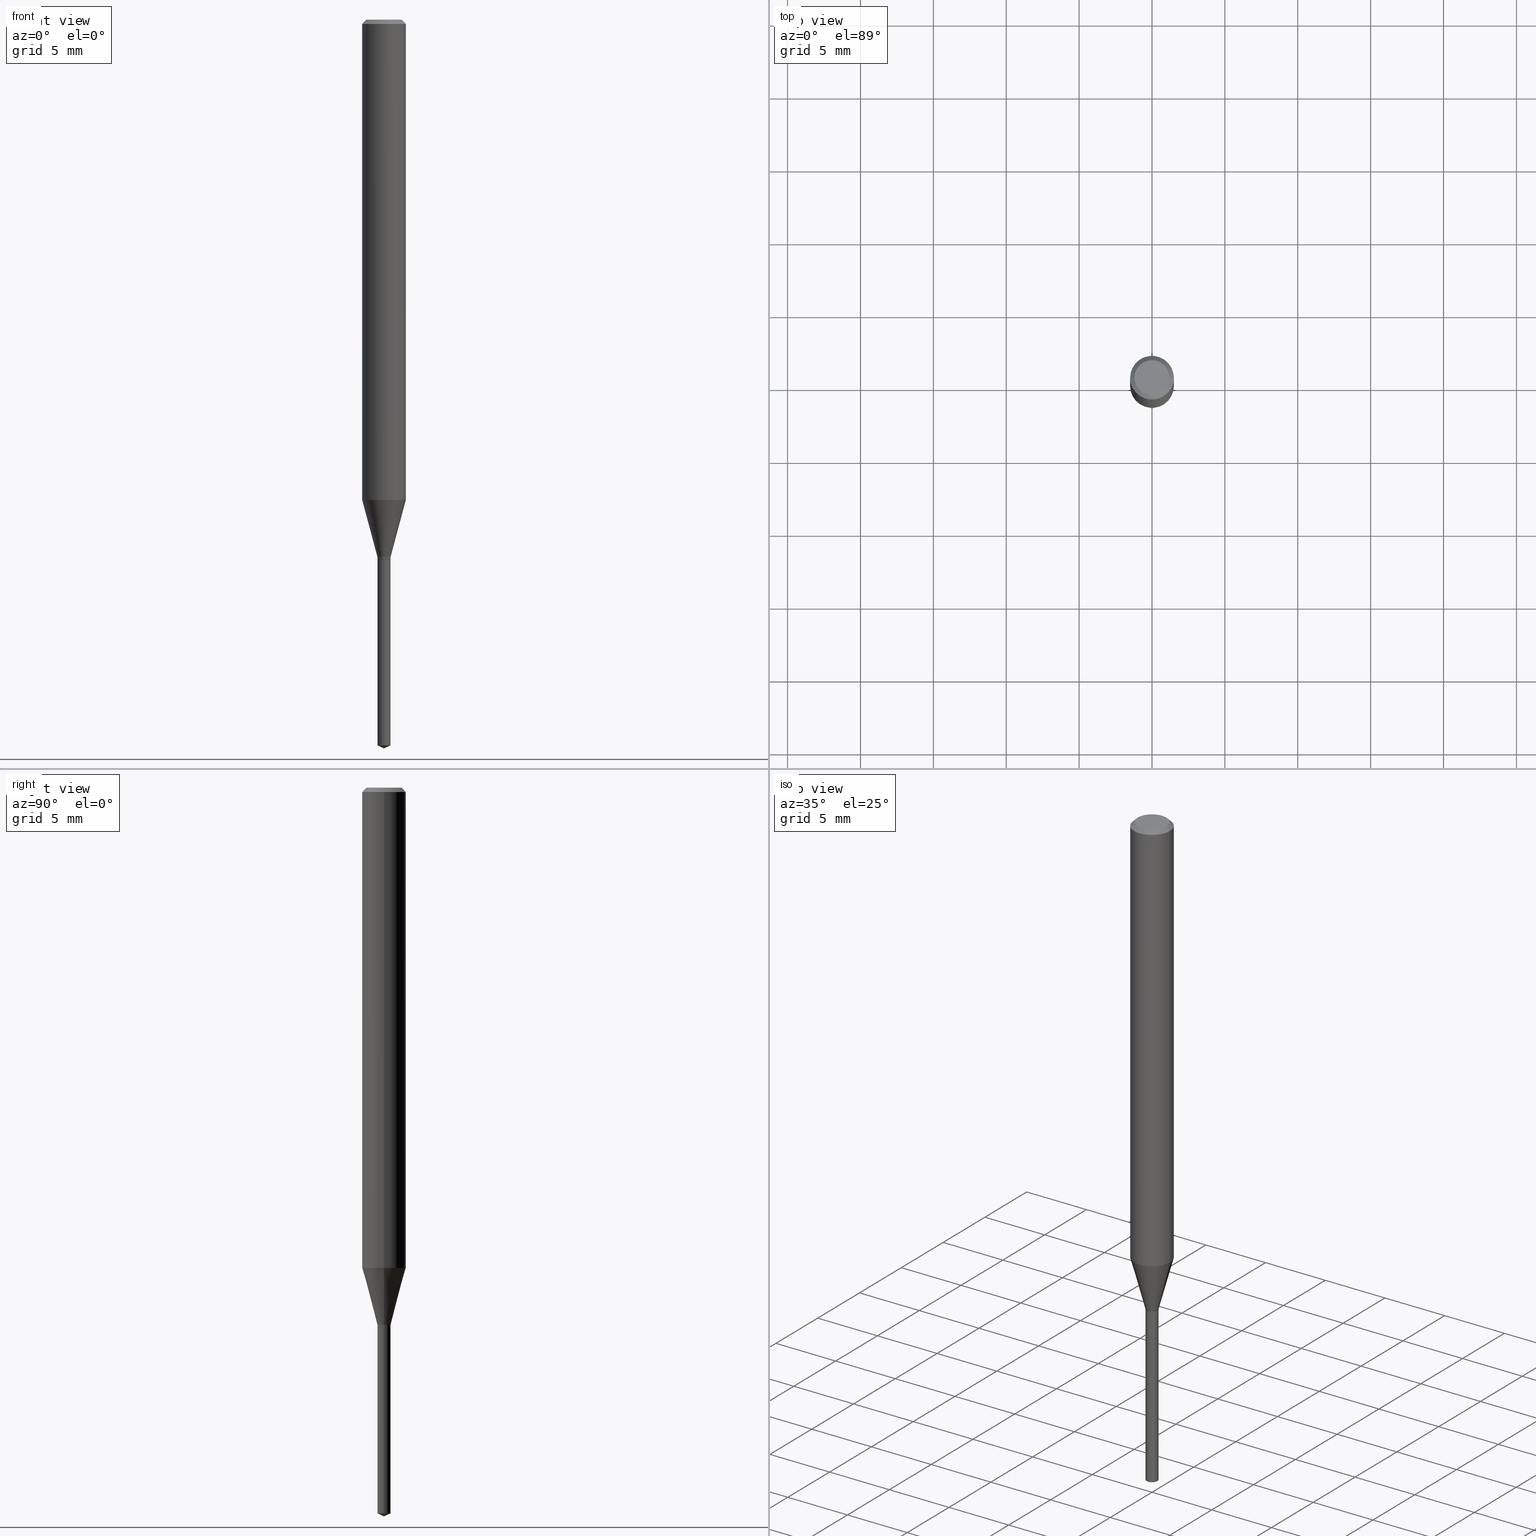
[diagram: canonical four-view strip — front | top / right | iso, engineering-drawing reading convention]
A machine part, canonical four-view strip (front | top / right | iso — engineering-drawing reading convention). The complete STEP part file that produces these views, byte-faithful:
ISO-10303-21;
HEADER;
FILE_DESCRIPTION (( 'STEP AP203' ),
    '1' );
FILE_NAME ('07469.STEP',
    '2024-04-23T21:47:29',
    ( '' ),
    ( '' ),
    'SwSTEP 2.0',
    'SolidWorks 2023',
    '' );
FILE_SCHEMA (( 'CONFIG_CONTROL_DESIGN' ));
ENDSEC;

DATA;
#1 = EDGE_CURVE ( 'NONE', #19, #268, #9, .T. ) ;
#2 = CARTESIAN_POINT ( 'NONE',  ( 0.000000000000000000, 0.000000000000000000, 0.000000000000000000 ) ) ;
#3 = DIRECTION ( 'NONE',  ( -2.445468806185136597E-29, 3.491481338843145583E-15, 1.000000000000000000 ) ) ;
#4 = ORIENTED_EDGE ( 'NONE', *, *, #312, .F. ) ;
#5 = DIRECTION ( 'NONE',  ( 1.000000000000000000, -6.982962677686254089E-15, 0.000000000000000000 ) ) ;
#6 = DIRECTION ( 'NONE',  ( 1.000000000000000000, -6.982962677686266711E-15, 0.000000000000000000 ) ) ;
#7 = ADVANCED_FACE ( 'NONE', ( #263 ), #159, .F. ) ;
#8 = CARTESIAN_POINT ( 'NONE',  ( -0.01720000000000000001, -4.963827515742072474E-15, -1.456699999999999884 ) ) ;
#9 = CIRCLE ( 'NONE', #346, 0.01770000000000004556 ) ;
#10 = AXIS2_PLACEMENT_3D ( 'NONE', #412, #461, #120 ) ;
#11 = CARTESIAN_POINT ( 'NONE',  ( 0.04724000000000000421, -3.852183633974369838E-16, -3.380025165621689721E-19 ) ) ;
#12 = CARTESIAN_POINT ( 'NONE',  ( 0.05905000000000000526, -4.463468013801467941E-16, -0.01181000000000007565 ) ) ;
#13 = DIRECTION ( 'NONE',  ( -2.445468806185136877E-29, 3.491481338843145188E-15, 1.000000000000000000 ) ) ;
#14 = EDGE_CURVE ( 'NONE', #117, #342, #336, .T. ) ;
#15 = MECHANICAL_CONTEXT ( 'NONE', #324, 'mechanical' ) ;
#16 = ORIENTED_EDGE ( 'NONE', *, *, #27, .T. ) ;
#17 = AXIS2_PLACEMENT_3D ( 'NONE', #85, #200, #126 ) ;
#18 = VERTEX_POINT ( 'NONE', #89 ) ;
#19 = VERTEX_POINT ( 'NONE', #204 ) ;
#20 = DIRECTION ( 'NONE',  ( 1.000000000000000000, 0.000000000000000000, 0.000000000000000000 ) ) ;
#21 = ADVANCED_FACE ( 'NONE', ( #135 ), #368, .T. ) ;
#22 = DIRECTION ( 'NONE',  ( -2.445468806185136597E-29, 3.491481338843145583E-15, 1.000000000000000000 ) ) ;
#23 = DIRECTION ( 'NONE',  ( 2.445468806185136597E-29, -3.491481338843145583E-15, -1.000000000000000000 ) ) ;
#24 = DIRECTION ( 'NONE',  ( 1.000000000000000000, -6.982962677686254089E-15, 0.000000000000000000 ) ) ;
#25 = CIRCLE ( 'NONE', #103, 0.04724000000000000421 ) ;
#26 = APPROVAL_ROLE ( '' ) ;
#27 = EDGE_CURVE ( 'NONE', #154, #189, #285, .T. ) ;
#28 = ORIENTED_EDGE ( 'NONE', *, *, #278, .F. ) ;
#29 = CIRCLE ( 'NONE', #377, 0.05905000000000015098 ) ;
#30 = EDGE_LOOP ( 'NONE', ( #315, #332 ) ) ;
#31 = EDGE_CURVE ( 'NONE', #193, #189, #244, .T. ) ;
#32 = DIRECTION ( 'NONE',  ( 1.000000000000000000, -6.982962677686242256E-15, 0.000000000000000000 ) ) ;
#33 = APPROVAL_STATUS ( 'not_yet_approved' ) ;
#34 = ORIENTED_EDGE ( 'NONE', *, *, #290, .T. ) ;
#35 = AXIS2_PLACEMENT_3D ( 'NONE', #196, #272, #402 ) ;
#36 = CARTESIAN_POINT ( 'NONE',  ( 0.000000000000000000, 0.000000000000000000, 0.000000000000000000 ) ) ;
#37 = ORIENTED_EDGE ( 'NONE', *, *, #62, .F. ) ;
#38 = ORIENTED_EDGE ( 'NONE', *, *, #255, .F. ) ;
#39 = FACE_OUTER_BOUND ( 'NONE', #357, .T. ) ;
#40 = ADVANCED_FACE ( 'NONE', ( #65 ), #178, .T. ) ;
#41 = LINE ( 'NONE', #8, #54 ) ;
#42 = LINE ( 'NONE', #12, #168 ) ;
#43 = CARTESIAN_POINT ( 'NONE',  ( 0.01770000000000004556, -5.191134454591988905E-15, -1.451400000000000023 ) ) ;
#44 = VECTOR ( 'NONE', #400, 39.37007874015748143 ) ;
#45 = PRODUCT_DEFINITION_SHAPE ( 'NONE', 'NONE',  #364 ) ;
#46 = PRODUCT_DEFINITION_FORMATION_WITH_SPECIFIED_SOURCE ( 'ANY', '', #129, .NOT_KNOWN. ) ;
#47 = DIRECTION ( 'NONE',  ( 1.000000000000000000, -6.982962677686266711E-15, 0.000000000000000000 ) ) ;
#48 = EDGE_CURVE ( 'NONE', #471, #242, #41, .T. ) ;
#49 = DIRECTION ( 'NONE',  ( 0.000000000000000000, 0.000000000000000000, 1.000000000000000000 ) ) ;
#50 = VERTEX_POINT ( 'NONE', #239 ) ;
#51 = DIRECTION ( 'NONE',  ( -2.445468806185136597E-29, 3.491481338843145583E-15, 1.000000000000000000 ) ) ;
#52 = ORIENTED_EDGE ( 'NONE', *, *, #248, .F. ) ;
#53 = FACE_OUTER_BOUND ( 'NONE', #30, .T. ) ;
#54 = VECTOR ( 'NONE', #434, 39.37007874015748143 ) ;
#55 = AXIS2_PLACEMENT_3D ( 'NONE', #378, #197, #384 ) ;
#56 = DIRECTION ( 'NONE',  ( 1.000000000000000000, -6.982962677686267499E-15, 4.876176775795936353E-29 ) ) ;
#57 = DIRECTION ( 'NONE',  ( 1.000000000000000000, -6.982962677686268288E-15, 0.000000000000000000 ) ) ;
#58 = LENGTH_MEASURE_WITH_UNIT ( LENGTH_MEASURE( 0.02539999999999999897 ), #319 );
#59 = ADVANCED_FACE ( 'NONE', ( #394 ), #161, .T. ) ;
#60 = CARTESIAN_POINT ( 'NONE',  ( 3.561091675566796113E-29, -5.084295125623389731E-15, -1.456200000000000161 ) ) ;
#61 = ADVANCED_BREP_SHAPE_REPRESENTATION ( '07469', ( #320, #484, #91 ), #286 ) ;
#62 = EDGE_CURVE ( 'NONE', #50, #69, #140, .T. ) ;
#63 = LINE ( 'NONE', #147, #436 ) ;
#64 = DATE_AND_TIME ( #188, #299 ) ;
#65 = FACE_OUTER_BOUND ( 'NONE', #106, .T. ) ;
#66 = EDGE_LOOP ( 'NONE', ( #84, #383, #487, #270 ) ) ;
#67 = EDGE_LOOP ( 'NONE', ( #413, #485, #371, #38 ) ) ;
#68 = DATE_TIME_ROLE ( 'classification_date' ) ;
#69 = VERTEX_POINT ( 'NONE', #483 ) ;
#70 = ORIENTED_EDGE ( 'NONE', *, *, #127, .F. ) ;
#71 = DIRECTION ( 'NONE',  ( 1.000000000000000000, -6.982962677686254089E-15, 0.000000000000000000 ) ) ;
#72 = AXIS2_PLACEMENT_3D ( 'NONE', #93, #174, #437 ) ;
#73 = ORIENTED_EDGE ( 'NONE', *, *, #137, .F. ) ;
#74 = APPROVAL_PERSON_ORGANIZATION ( #170, #190, #211 ) ;
#75 = VECTOR ( 'NONE', #345, 39.37007874015748854 ) ;
#76 = CALENDAR_DATE ( 2024, 23, 4 ) ;
#77 = EDGE_LOOP ( 'NONE', ( #349, #194, #382, #73 ) ) ;
#78 = APPLICATION_CONTEXT ( 'configuration controlled 3d designs of mechanical parts and assemblies' ) ;
#79 = DIRECTION ( 'NONE',  ( 1.000000000000000000, -6.982962677686271444E-15, 0.000000000000000000 ) ) ;
#80 = DIRECTION ( 'NONE',  ( 1.000000000000000000, -6.982962677686266711E-15, 4.876176775795935793E-29 ) ) ;
#81 = ORIENTED_EDGE ( 'NONE', *, *, #153, .F. ) ;
#82 = CC_DESIGN_PERSON_AND_ORGANIZATION_ASSIGNMENT ( #393, #479, ( #129 ) ) ;
#83 = VECTOR ( 'NONE', #243, 39.37007874015748854 ) ;
#84 = ORIENTED_EDGE ( 'NONE', *, *, #163, .T. ) ;
#85 = CARTESIAN_POINT ( 'NONE',  ( 3.562314409969888354E-29, -5.086040866292809657E-15, -1.456699999999999884 ) ) ;
#86 = DIRECTION ( 'NONE',  ( -2.445468806185136597E-29, 3.491481338843145583E-15, 1.000000000000000000 ) ) ;
#87 = CARTESIAN_POINT ( 'NONE',  ( 3.549353425297106788E-29, -5.067536015196941719E-15, -1.451400000000000023 ) ) ;
#88 = CARTESIAN_POINT ( 'NONE',  ( -9.146439411113230710E-28, 1.305869142145323662E-13, 37.40157874015748263 ) ) ;
#89 = CARTESIAN_POINT ( 'NONE',  ( 0.01720000000000000001, -5.206147824349013047E-15, -1.456699999999999884 ) ) ;
#90 = VECTOR ( 'NONE', #184, 39.37007874015748143 ) ;
#91 = AXIS2_PLACEMENT_3D ( 'NONE', #251, #49, #20 ) ;
#92 = DIRECTION ( 'NONE',  ( 1.000000000000000000, -6.982962677686266711E-15, 4.876185090822587894E-29 ) ) ;
#93 = CARTESIAN_POINT ( 'NONE',  ( 2.888098660104664642E-31, -4.123439461173780879E-17, -0.01181000000000007565 ) ) ;
#94 = DIRECTION ( 'NONE',  ( -2.445468806185136597E-29, 3.491481338843145583E-15, 1.000000000000000000 ) ) ;
#95 = PERSON_AND_ORGANIZATION ( #289, #151 ) ;
#96 = EDGE_CURVE ( 'NONE', #198, #189, #445, .T. ) ;
#97 = COORDINATED_UNIVERSAL_TIME_OFFSET ( 5, 0, .BEHIND. ) ;
#98 = CIRCLE ( 'NONE', #17, 0.01770000000000000046 ) ;
#99 = CIRCLE ( 'NONE', #279, 0.01720000000000000001 ) ;
#100 = LINE ( 'NONE', #288, #83 ) ;
#101 = CARTESIAN_POINT ( 'NONE',  ( -0.05905000000000008159, 4.195754854663397395E-16, -2.904631170795525745E-30 ) ) ;
#102 = EDGE_CURVE ( 'NONE', #353, #268, #148, .T. ) ;
#103 = AXIS2_PLACEMENT_3D ( 'NONE', #432, #94, #355 ) ;
#104 = APPROVAL ( #33, 'UNSPECIFIED' ) ;
#105 = SECURITY_CLASSIFICATION_LEVEL ( 'unclassified' ) ;
#106 = EDGE_LOOP ( 'NONE', ( #339, #172, #16, #380 ) ) ;
#107 = CARTESIAN_POINT ( 'NONE',  ( -0.05905000000000015098, -4.109154078958125547E-15, -1.297079699107026807 ) ) ;
#108 = EDGE_CURVE ( 'NONE', #242, #353, #124, .T. ) ;
#109 = PERSON_AND_ORGANIZATION ( #289, #151 ) ;
#110 = ORIENTED_EDGE ( 'NONE', *, *, #163, .F. ) ;
#111 = CALENDAR_DATE ( 2024, 23, 4 ) ;
#112 = VERTEX_POINT ( 'NONE', #177 ) ;
#113 = AXIS2_PLACEMENT_3D ( 'NONE', #446, #489, #260 ) ;
#114 = CONICAL_SURFACE ( 'NONE', #223, 0.01720000000000000001, 0.7853981633978666110 ) ;
#115 = DATE_AND_TIME ( #76, #180 ) ;
#116 = CARTESIAN_POINT ( 'NONE',  ( 3.549353425297106788E-29, -5.067536015196941719E-15, -1.451400000000000023 ) ) ;
#117 = VERTEX_POINT ( 'NONE', #201 ) ;
#118 = CYLINDRICAL_SURFACE ( 'NONE', #125, 0.01770000000000000046 ) ;
#119 = EDGE_LOOP ( 'NONE', ( #230, #350, #241 ) ) ;
#120 = DIRECTION ( 'NONE',  ( -1.000000000000000000, 6.982962677686265922E-15, -4.876176775795935793E-29 ) ) ;
#121 = EDGE_CURVE ( 'NONE', #50, #112, #311, .T. ) ;
#122 = DIRECTION ( 'NONE',  ( 1.000000000000000000, -6.982962677686271444E-15, 0.000000000000000000 ) ) ;
#123 = DIRECTION ( 'NONE',  ( 1.000000000000000000, -6.982962677686271444E-15, 0.000000000000000000 ) ) ;
#124 = CIRCLE ( 'NONE', #390, 0.01770000000000004556 ) ;
#125 = AXIS2_PLACEMENT_3D ( 'NONE', #277, #269, #416 ) ;
#126 = DIRECTION ( 'NONE',  ( 1.000000000000000000, -6.982962677686271444E-15, 0.000000000000000000 ) ) ;
#127 = EDGE_CURVE ( 'NONE', #242, #19, #63, .T. ) ;
#128 = DIRECTION ( 'NONE',  ( -2.445468806185136597E-29, 3.491481338843145583E-15, 1.000000000000000000 ) ) ;
#129 = PRODUCT ( '07469', '07469', '', ( #15 ) ) ;
#130 = EDGE_LOOP ( 'NONE', ( #70, #460, #138, #481 ) ) ;
#131 = CARTESIAN_POINT ( 'NONE',  ( 0.000000000000000000, 0.000000000000000000, 0.000000000000000000 ) ) ;
#132 = AXIS2_PLACEMENT_3D ( 'NONE', #361, #23, #149 ) ;
#133 = CC_DESIGN_APPROVAL ( #190, ( #364 ) ) ;
#134 = FACE_OUTER_BOUND ( 'NONE', #77, .T. ) ;
#135 = FACE_OUTER_BOUND ( 'NONE', #66, .T. ) ;
#136 = CALENDAR_DATE ( 2024, 23, 4 ) ;
#137 = EDGE_CURVE ( 'NONE', #112, #342, #325, .T. ) ;
#138 = ORIENTED_EDGE ( 'NONE', *, *, #102, .T. ) ;
#139 = PERSON_AND_ORGANIZATION_ROLE ( 'creator' ) ;
#140 = LINE ( 'NONE', #322, #316 ) ;
#141 = CIRCLE ( 'NONE', #228, 0.01770000000000004556 ) ;
#142 = APPLICATION_PROTOCOL_DEFINITION ( 'international standard', 'config_control_design', 1994, #78 ) ;
#143 = DIRECTION ( 'NONE',  ( 1.000000000000000000, -6.982962677686242256E-15, 0.000000000000000000 ) ) ;
#144 = PERSON_AND_ORGANIZATION ( #289, #151 ) ;
#145 = CC_DESIGN_DATE_AND_TIME_ASSIGNMENT ( #115, #68, ( #391 ) ) ;
#146 = DIRECTION ( 'NONE',  ( -2.445468806185136597E-29, 3.491481338843145583E-15, 1.000000000000000000 ) ) ;
#147 = CARTESIAN_POINT ( 'NONE',  ( -0.01770000000000004556, 1.257660642295380566E-16, -8.706515109751205419E-31 ) ) ;
#148 = LINE ( 'NONE', #367, #44 ) ;
#149 = DIRECTION ( 'NONE',  ( -1.000000000000000000, 6.982962677686265922E-15, 0.000000000000000000 ) ) ;
#150 = AXIS2_PLACEMENT_3D ( 'NONE', #36, #462, #167 ) ;
#151 = ORGANIZATION ( 'UNSPECIFIED', 'UNSPECIFIED', '' ) ;
#152 = ORIENTED_EDGE ( 'NONE', *, *, #255, .T. ) ;
#153 = EDGE_CURVE ( 'NONE', #222, #154, #155, .T. ) ;
#154 = VERTEX_POINT ( 'NONE', #186 ) ;
#155 = LINE ( 'NONE', #447, #210 ) ;
#156 = DIRECTION ( 'NONE',  ( 1.000000000000000000, -6.982962677686271444E-15, 0.000000000000000000 ) ) ;
#157 = CC_DESIGN_DATE_AND_TIME_ASSIGNMENT ( #442, #331, ( #364 ) ) ;
#158 = FACE_OUTER_BOUND ( 'NONE', #130, .T. ) ;
#159 = PLANE ( 'NONE',  #10 ) ;
#160 = FACE_OUTER_BOUND ( 'NONE', #67, .T. ) ;
#161 = CYLINDRICAL_SURFACE ( 'NONE', #405, 0.05905000000000008159 ) ;
#162 = ORIENTED_EDGE ( 'NONE', *, *, #14, .F. ) ;
#163 = EDGE_CURVE ( 'NONE', #268, #19, #141, .T. ) ;
#164 = VECTOR ( 'NONE', #209, 39.37007874015748143 ) ;
#165 = CARTESIAN_POINT ( 'NONE',  ( 0.01770000000000000046, -5.209639305687856843E-15, -1.456699999999999884 ) ) ;
#166 = DESIGN_CONTEXT ( 'detailed design', #78, 'design' ) ;
#167 = DIRECTION ( 'NONE',  ( 1.000000000000000000, -6.982962677686267499E-15, 4.876176775795936353E-29 ) ) ;
#168 = VECTOR ( 'NONE', #472, 39.37007874015748143 ) ;
#169 = ORIENTED_EDGE ( 'NONE', *, *, #423, .T. ) ;
#170 = PERSON_AND_ORGANIZATION ( #289, #151 ) ;
#171 = ADVANCED_FACE ( 'NONE', ( #333 ), #237, .T. ) ;
#172 = ORIENTED_EDGE ( 'NONE', *, *, #248, .T. ) ;
#173 = DIRECTION ( 'NONE',  ( 2.438088387897960049E-29, -3.491481338843145188E-15, -1.000000000000000000 ) ) ;
#174 = DIRECTION ( 'NONE',  ( -2.445468806185136597E-29, 3.491481338843145583E-15, 1.000000000000000000 ) ) ;
#175 = DIRECTION ( 'NONE',  ( -2.438088387897960049E-29, 3.491481338843145188E-15, 1.000000000000000000 ) ) ;
#176 = ADVANCED_FACE ( 'NONE', ( #375 ), #475, .T. ) ;
#177 = CARTESIAN_POINT ( 'NONE',  ( 0.01770000000000000046, -6.967762005494819983E-15, -1.960246354450656536 ) ) ;
#178 = CONICAL_SURFACE ( 'NONE', #132, 0.05905000000000000526, 0.7853981633974453924 ) ;
#179 = PLANE ( 'NONE',  #356 ) ;
#180 = LOCAL_TIME ( 17, 47, 29.00000000000000000, #453 ) ;
#181 = CC_DESIGN_PERSON_AND_ORGANIZATION_ASSIGNMENT ( #109, #224, ( #46 ) ) ;
#182 = DIRECTION ( 'NONE',  ( -2.445468806185136877E-29, 3.491481338843145188E-15, 1.000000000000000000 ) ) ;
#183 = CARTESIAN_POINT ( 'NONE',  ( -0.05905000000000000526, 3.711095515056362547E-16, -0.01181000000000007565 ) ) ;
#184 = DIRECTION ( 'NONE',  ( -0.7071067811865454633, 2.468850131082235367E-15, -0.7071067811865495711 ) ) ;
#185 = PERSON_AND_ORGANIZATION ( #289, #151 ) ;
#186 = CARTESIAN_POINT ( 'NONE',  ( 0.05905000000000000526, -4.535783407291119586E-16, -0.01181000000000007565 ) ) ;
#187 = AXIS2_PLACEMENT_3D ( 'NONE', #306, #337, #156 ) ;
#188 = CALENDAR_DATE ( 2024, 23, 4 ) ;
#189 = VERTEX_POINT ( 'NONE', #482 ) ;
#190 = APPROVAL ( #208, 'UNSPECIFIED' ) ;
#191 = DIRECTION ( 'NONE',  ( -2.445468806185136597E-29, 3.491481338843145583E-15, 1.000000000000000000 ) ) ;
#192 = CLOSED_SHELL ( 'NONE', ( #395, #40, #59, #21, #376, #261, #171, #305, #176, #449, #439, #218 ) ) ;
#193 = VERTEX_POINT ( 'NONE', #107 ) ;
#194 = ORIENTED_EDGE ( 'NONE', *, *, #278, .T. ) ;
#195 = CIRCLE ( 'NONE', #398, 0.01770000000000000046 ) ;
#196 = CARTESIAN_POINT ( 'NONE',  ( 2.888098660104664642E-31, -4.123439461173780879E-17, -0.01181000000000007565 ) ) ;
#197 = DIRECTION ( 'NONE',  ( -2.445468806185136597E-29, 3.491481338843145583E-15, 1.000000000000000000 ) ) ;
#198 = VERTEX_POINT ( 'NONE', #374 ) ;
#199 = FACE_OUTER_BOUND ( 'NONE', #205, .T. ) ;
#200 = DIRECTION ( 'NONE',  ( -2.445468806185136597E-29, 3.491481338843145583E-15, 1.000000000000000000 ) ) ;
#201 = CARTESIAN_POINT ( 'NONE',  ( -0.01770000000000000046, -5.839336151966753145E-15, -1.456699999999999884 ) ) ;
#202 = LOCAL_TIME ( 17, 47, 29.00000000000000000, #97 ) ;
#203 = CARTESIAN_POINT ( 'NONE',  ( 0.01770000000000004556, -5.207893565018436917E-15, -1.456200000000000161 ) ) ;
#204 = CARTESIAN_POINT ( 'NONE',  ( -0.01770000000000004556, -4.950149506180627644E-15, -1.451400000000000023 ) ) ;
#205 = EDGE_LOOP ( 'NONE', ( #373, #469, #417, #452 ) ) ;
#206 = ORIENTED_EDGE ( 'NONE', *, *, #455, .F. ) ;
#207 = APPLICATION_PROTOCOL_DEFINITION ( 'international standard', 'config_control_design', 1994, #324 ) ;
#208 = APPROVAL_STATUS ( 'not_yet_approved' ) ;
#209 = DIRECTION ( 'NONE',  ( 0.9063077870366508249, -4.853149677051393778E-15, 0.4226182617406974984 ) ) ;
#210 = VECTOR ( 'NONE', #456, 39.37007874015748143 ) ;
#211 = APPROVAL_ROLE ( '' ) ;
#212 = DIRECTION ( 'NONE',  ( -2.445468806185136597E-29, 3.491481338843145583E-15, 1.000000000000000000 ) ) ;
#213 = DIRECTION ( 'NONE',  ( -2.445468806185136597E-29, 3.491481338843145583E-15, 1.000000000000000000 ) ) ;
#214 = DIRECTION ( 'NONE',  ( 1.000000000000000000, -6.982962677686242256E-15, 0.000000000000000000 ) ) ;
#215 = CIRCLE ( 'NONE', #292, 0.04724000000000000421 ) ;
#216 = PERSON_AND_ORGANIZATION_ROLE ( 'classification_officer' ) ;
#217 = APPROVAL_DATE_TIME ( #64, #104 ) ;
#218 = ADVANCED_FACE ( 'NONE', ( #229 ), #428, .T. ) ;
#219 = DIRECTION ( 'NONE',  ( -0.9063077870366508249, 7.915267918739014631E-15, 0.4226182617406974984 ) ) ;
#220 = AXIS2_PLACEMENT_3D ( 'NONE', #304, #463, #123 ) ;
#221 = DIRECTION ( 'NONE',  ( -2.445468806185136597E-29, 3.491481338843145583E-15, 1.000000000000000000 ) ) ;
#222 = VERTEX_POINT ( 'NONE', #282 ) ;
#223 = AXIS2_PLACEMENT_3D ( 'NONE', #344, #3, #427 ) ;
#224 = PERSON_AND_ORGANIZATION_ROLE ( 'design_supplier' ) ;
#225 = EDGE_CURVE ( 'NONE', #309, #198, #25, .T. ) ;
#226 = ORIENTED_EDGE ( 'NONE', *, *, #409, .T. ) ;
#227 = CARTESIAN_POINT ( 'NONE',  ( 0.01770000000000004556, -5.191134454591988905E-15, -1.451400000000000023 ) ) ;
#228 = AXIS2_PLACEMENT_3D ( 'NONE', #328, #221, #370 ) ;
#229 = FACE_OUTER_BOUND ( 'NONE', #266, .T. ) ;
#230 = ORIENTED_EDGE ( 'NONE', *, *, #121, .F. ) ;
#231 = LINE ( 'NONE', #300, #253 ) ;
#232 = DIRECTION ( 'NONE',  ( -2.445468806185136597E-29, 3.491481338843145583E-15, 1.000000000000000000 ) ) ;
#233 = CARTESIAN_POINT ( 'NONE',  ( 4.793721312247213410E-29, -6.844163566099774374E-15, -1.960246354450656536 ) ) ;
#234 = EDGE_CURVE ( 'NONE', #222, #193, #29, .T. ) ;
#235 = DIRECTION ( 'NONE',  ( 0.7071067811868433362, -2.468850131085355312E-15, 0.7071067811862516983 ) ) ;
#236 = CARTESIAN_POINT ( 'NONE',  ( 0.000000000000000000, 0.000000000000000000, 0.000000000000000000 ) ) ;
#237 = CONICAL_SURFACE ( 'NONE', #252, 0.01770000000000004556, 0.2617993877991498519 ) ;
#238 = APPROVAL_PERSON_ORGANIZATION ( #372, #104, #257 ) ;
#239 = CARTESIAN_POINT ( 'NONE',  ( 4.813905344975441835E-29, -6.872981015512731707E-15, -1.968500000000000139 ) ) ;
#240 = CYLINDRICAL_SURFACE ( 'NONE', #307, 0.01770000000000004556 ) ;
#241 = ORIENTED_EDGE ( 'NONE', *, *, #318, .F. ) ;
#242 = VERTEX_POINT ( 'NONE', #386 ) ;
#243 = DIRECTION ( 'NONE',  ( -0.2588190451025211281, 5.211531920934547886E-15, 0.9659258262890679791 ) ) ;
#244 = LINE ( 'NONE', #101, #246 ) ;
#245 = CARTESIAN_POINT ( 'NONE',  ( -0.01720000000000000001, -4.961178288567961273E-15, -1.456699999999999884 ) ) ;
#246 = VECTOR ( 'NONE', #406, 39.37007874015748143 ) ;
#247 = AXIS2_PLACEMENT_3D ( 'NONE', #420, #86, #6 ) ;
#248 = EDGE_CURVE ( 'NONE', #309, #154, #42, .T. ) ;
#249 = CARTESIAN_POINT ( 'NONE',  ( 4.813905344975441835E-29, -6.872981015512731707E-15, -1.968500000000000139 ) ) ;
#250 = DIRECTION ( 'NONE',  ( -1.000000000000000000, 6.982962677686265922E-15, -4.876176775795935793E-29 ) ) ;
#251 = CARTESIAN_POINT ( 'NONE',  ( 0.000000000000000000, 0.000000000000000000, 0.000000000000000000 ) ) ;
#252 = AXIS2_PLACEMENT_3D ( 'NONE', #116, #212, #71 ) ;
#253 = VECTOR ( 'NONE', #235, 39.37007874015748143 ) ;
#254 = EDGE_LOOP ( 'NONE', ( #34, #467 ) ) ;
#255 = EDGE_CURVE ( 'NONE', #189, #154, #298, .T. ) ;
#256 = DIRECTION ( 'NONE',  ( -2.445468806185136877E-29, 3.491481338843145188E-15, 1.000000000000000000 ) ) ;
#257 = APPROVAL_ROLE ( '' ) ;
#258 = DIRECTION ( 'NONE',  ( -2.445468806185136597E-29, 3.491481338843145583E-15, 1.000000000000000000 ) ) ;
#259 = PERSON_AND_ORGANIZATION ( #289, #151 ) ;
#260 = DIRECTION ( 'NONE',  ( 1.000000000000000000, -6.982962677686254089E-15, 0.000000000000000000 ) ) ;
#261 = ADVANCED_FACE ( 'NONE', ( #158 ), #240, .T. ) ;
#262 = AXIS2_PLACEMENT_3D ( 'NONE', #275, #438, #143 ) ;
#263 = FACE_OUTER_BOUND ( 'NONE', #254, .T. ) ;
#264 = EDGE_LOOP ( 'NONE', ( #206, #422, #334, #4 ) ) ;
#265 = APPROVAL ( #411, 'UNSPECIFIED' ) ;
#266 = EDGE_LOOP ( 'NONE', ( #335, #169, #466, #490 ) ) ;
#267 = CC_DESIGN_PERSON_AND_ORGANIZATION_ASSIGNMENT ( #259, #293, ( #46 ) ) ;
#268 = VERTEX_POINT ( 'NONE', #227 ) ;
#269 = DIRECTION ( 'NONE',  ( -2.445468806185136597E-29, 3.491481338843145583E-15, 1.000000000000000000 ) ) ;
#270 = ORIENTED_EDGE ( 'NONE', *, *, #414, .F. ) ;
#271 = FACE_OUTER_BOUND ( 'NONE', #399, .T. ) ;
#272 = DIRECTION ( 'NONE',  ( 2.445468806185136597E-29, -3.491481338843145583E-15, -1.000000000000000000 ) ) ;
#273 = CONICAL_SURFACE ( 'NONE', #421, 84.42940631927444883, 1.134464013796316451 ) ;
#274 = LINE ( 'NONE', #43, #75 ) ;
#275 = CARTESIAN_POINT ( 'NONE',  ( 3.562314409969888354E-29, -5.086040866292809657E-15, -1.456699999999999884 ) ) ;
#276 = ORIENTED_EDGE ( 'NONE', *, *, #433, .F. ) ;
#277 = CARTESIAN_POINT ( 'NONE',  ( 3.562314409969888354E-29, -5.086040866292809657E-15, -1.456699999999999884 ) ) ;
#278 = EDGE_CURVE ( 'NONE', #69, #117, #310, .T. ) ;
#279 = AXIS2_PLACEMENT_3D ( 'NONE', #440, #22, #214 ) ;
#280 = ORIENTED_EDGE ( 'NONE', *, *, #121, .T. ) ;
#281 = CYLINDRICAL_SURFACE ( 'NONE', #369, 0.01770000000000000046 ) ;
#282 = CARTESIAN_POINT ( 'NONE',  ( 0.05905000000000015098, -4.941073510541841537E-15, -1.297079699107026807 ) ) ;
#283 = DATE_AND_TIME ( #136, #347 ) ;
#284 = FACE_OUTER_BOUND ( 'NONE', #430, .T. ) ;
#285 = CIRCLE ( 'NONE', #72, 0.05905000000000000526 ) ;
#286 =( GEOMETRIC_REPRESENTATION_CONTEXT ( 3 ) GLOBAL_UNCERTAINTY_ASSIGNED_CONTEXT ( ( #425 ) ) GLOBAL_UNIT_ASSIGNED_CONTEXT ( ( #431, #358, #474 ) ) REPRESENTATION_CONTEXT ( 'NONE', 'WORKASPACE' ) );
#287 = CONICAL_SURFACE ( 'NONE', #247, 84.42940631927444883, 1.134464013796316451 ) ;
#288 = CARTESIAN_POINT ( 'NONE',  ( -0.01770000000000004556, -4.941769950967403638E-15, -1.451400000000000023 ) ) ;
#289 = PERSON ( 'UNSPECIFIED', 'UNSPECIFIED', 'UNSPECIFIED', ('UNSPECIFIED'), ('UNSPECIFIED'), ('UNSPECIFIED') ) ;
#290 = EDGE_CURVE ( 'NONE', #342, #117, #98, .T. ) ;
#291 = CARTESIAN_POINT ( 'NONE',  ( 0.01770000000000000046, -5.209639305687856843E-15, -1.456699999999999884 ) ) ;
#292 = AXIS2_PLACEMENT_3D ( 'NONE', #392, #348, #92 ) ;
#293 = PERSON_AND_ORGANIZATION_ROLE ( 'creator' ) ;
#294 = EDGE_LOOP ( 'NONE', ( #301, #351, #110, #415 ) ) ;
#295 = EDGE_CURVE ( 'NONE', #198, #309, #215, .T. ) ;
#296 = COORDINATED_UNIVERSAL_TIME_OFFSET ( 5, 0, .BEHIND. ) ;
#297 = CALENDAR_DATE ( 2024, 23, 4 ) ;
#298 = CIRCLE ( 'NONE', #363, 0.05905000000000000526 ) ;
#299 = LOCAL_TIME ( 17, 47, 29.00000000000000000, #366 ) ;
#300 = CARTESIAN_POINT ( 'NONE',  ( 0.01720000000000000001, -5.206147824349013047E-15, -1.456699999999999884 ) ) ;
#301 = ORIENTED_EDGE ( 'NONE', *, *, #341, .T. ) ;
#302 = ORIENTED_EDGE ( 'NONE', *, *, #27, .F. ) ;
#303 = CYLINDRICAL_SURFACE ( 'NONE', #150, 0.05905000000000008159 ) ;
#304 = CARTESIAN_POINT ( 'NONE',  ( 3.562314409969888354E-29, -5.086040866292809657E-15, -1.456699999999999884 ) ) ;
#305 = ADVANCED_FACE ( 'NONE', ( #160 ), #303, .T. ) ;
#306 = CARTESIAN_POINT ( 'NONE',  ( 4.793721312247213410E-29, -6.844163566099774374E-15, -1.960246354450656536 ) ) ;
#307 = AXIS2_PLACEMENT_3D ( 'NONE', #2, #424, #80 ) ;
#308 = CIRCLE ( 'NONE', #187, 0.01770000000000000046 ) ;
#309 = VERTEX_POINT ( 'NONE', #11 ) ;
#310 = LINE ( 'NONE', #426, #443 ) ;
#311 = LINE ( 'NONE', #249, #164 ) ;
#312 = EDGE_CURVE ( 'NONE', #193, #222, #354, .T. ) ;
#313 = FACE_OUTER_BOUND ( 'NONE', #119, .T. ) ;
#314 = CC_DESIGN_PERSON_AND_ORGANIZATION_ASSIGNMENT ( #185, #216, ( #391 ) ) ;
#315 = ORIENTED_EDGE ( 'NONE', *, *, #295, .T. ) ;
#316 = VECTOR ( 'NONE', #219, 39.37007874015748143 ) ;
#317 = CARTESIAN_POINT ( 'NONE',  ( 3.562314409969888354E-29, -5.086040866292809657E-15, -1.456699999999999884 ) ) ;
#318 = EDGE_CURVE ( 'NONE', #112, #69, #308, .T. ) ;
#319 =( LENGTH_UNIT ( ) NAMED_UNIT ( * ) SI_UNIT ( $, .METRE. ) );
#320 = MANIFOLD_SOLID_BREP ( 'Body-Move/Copy2[1]', #419 ) ;
#321 = CC_DESIGN_APPROVAL ( #265, ( #46 ) ) ;
#322 = CARTESIAN_POINT ( 'NONE',  ( 4.813905344975441835E-29, -6.872981015512731707E-15, -1.968500000000000139 ) ) ;
#323 = CC_DESIGN_PERSON_AND_ORGANIZATION_ASSIGNMENT ( #95, #139, ( #364 ) ) ;
#324 = APPLICATION_CONTEXT ( 'configuration controlled 3d designs of mechanical parts and assemblies' ) ;
#325 = LINE ( 'NONE', #291, #486 ) ;
#326 = DATE_AND_TIME ( #297, #480 ) ;
#327 = CIRCLE ( 'NONE', #55, 0.01770000000000004556 ) ;
#328 = CARTESIAN_POINT ( 'NONE',  ( 3.549353425297106788E-29, -5.067536015196941719E-15, -1.451400000000000023 ) ) ;
#329 = ORIENTED_EDGE ( 'NONE', *, *, #295, .F. ) ;
#330 = EDGE_CURVE ( 'NONE', #18, #353, #231, .T. ) ;
#331 = DATE_TIME_ROLE ( 'creation_date' ) ;
#332 = ORIENTED_EDGE ( 'NONE', *, *, #225, .T. ) ;
#333 = FACE_OUTER_BOUND ( 'NONE', #264, .T. ) ;
#334 = ORIENTED_EDGE ( 'NONE', *, *, #414, .T. ) ;
#335 = ORIENTED_EDGE ( 'NONE', *, *, #48, .F. ) ;
#336 = CIRCLE ( 'NONE', #220, 0.01770000000000000046 ) ;
#337 = DIRECTION ( 'NONE',  ( -2.445468806185136597E-29, 3.491481338843145583E-15, 1.000000000000000000 ) ) ;
#338 = CIRCLE ( 'NONE', #262, 0.01720000000000000001 ) ;
#339 = ORIENTED_EDGE ( 'NONE', *, *, #225, .F. ) ;
#340 = CYLINDRICAL_SURFACE ( 'NONE', #379, 0.01770000000000004556 ) ;
#341 = EDGE_CURVE ( 'NONE', #353, #242, #327, .T. ) ;
#342 = VERTEX_POINT ( 'NONE', #165 ) ;
#343 = ORIENTED_EDGE ( 'NONE', *, *, #96, .T. ) ;
#344 = CARTESIAN_POINT ( 'NONE',  ( 3.562314409969888354E-29, -5.086040866292809657E-15, -1.456699999999999884 ) ) ;
#345 = DIRECTION ( 'NONE',  ( 0.2588190451025211281, 1.565188264969622954E-15, 0.9659258262890679791 ) ) ;
#346 = AXIS2_PLACEMENT_3D ( 'NONE', #87, #470, #5 ) ;
#347 = LOCAL_TIME ( 17, 47, 29.00000000000000000, #352 ) ;
#348 = DIRECTION ( 'NONE',  ( -2.445468806185136597E-29, 3.491481338843145583E-15, 1.000000000000000000 ) ) ;
#349 = ORIENTED_EDGE ( 'NONE', *, *, #318, .T. ) ;
#350 = ORIENTED_EDGE ( 'NONE', *, *, #62, .T. ) ;
#351 = ORIENTED_EDGE ( 'NONE', *, *, #127, .T. ) ;
#352 = COORDINATED_UNIVERSAL_TIME_OFFSET ( 5, 0, .BEHIND. ) ;
#353 = VERTEX_POINT ( 'NONE', #203 ) ;
#354 = CIRCLE ( 'NONE', #410, 0.05905000000000015098 ) ;
#355 = DIRECTION ( 'NONE',  ( 1.000000000000000000, -6.982962677686266711E-15, 4.876185090822587894E-29 ) ) ;
#356 = AXIS2_PLACEMENT_3D ( 'NONE', #396, #175, #362 ) ;
#357 = EDGE_LOOP ( 'NONE', ( #28, #226, #451, #162 ) ) ;
#358 =( NAMED_UNIT ( * ) PLANE_ANGLE_UNIT ( ) SI_UNIT ( $, .RADIAN. ) );
#359 = ADVANCED_FACE ( 'NONE', ( #313 ), #273, .T. ) ;
#360 = DIRECTION ( 'NONE',  ( 1.000000000000000000, -6.982962677686271444E-15, 0.000000000000000000 ) ) ;
#361 = CARTESIAN_POINT ( 'NONE',  ( 2.888098660104664642E-31, -4.123439461173780879E-17, -0.01181000000000007565 ) ) ;
#362 = DIRECTION ( 'NONE',  ( 1.000000000000000000, -6.982962677686265922E-15, 4.876176775795935793E-29 ) ) ;
#363 = AXIS2_PLACEMENT_3D ( 'NONE', #478, #441, #57 ) ;
#364 = PRODUCT_DEFINITION ( 'UNKNOWN', '', #46, #166 ) ;
#365 = CC_DESIGN_APPROVAL ( #104, ( #391 ) ) ;
#366 = COORDINATED_UNIVERSAL_TIME_OFFSET ( 5, 0, .BEHIND. ) ;
#367 = CARTESIAN_POINT ( 'NONE',  ( 0.01770000000000004556, -1.235984393950472351E-16, 8.630832893158828620E-31 ) ) ;
#368 = CONICAL_SURFACE ( 'NONE', #113, 0.01770000000000004556, 0.2617993877991498519 ) ;
#369 = AXIS2_PLACEMENT_3D ( 'NONE', #317, #51, #360 ) ;
#370 = DIRECTION ( 'NONE',  ( 1.000000000000000000, -6.982962677686254089E-15, 0.000000000000000000 ) ) ;
#371 = ORIENTED_EDGE ( 'NONE', *, *, #153, .T. ) ;
#372 = PERSON_AND_ORGANIZATION ( #289, #151 ) ;
#373 = ORIENTED_EDGE ( 'NONE', *, *, #433, .T. ) ;
#374 = CARTESIAN_POINT ( 'NONE',  ( -0.04724000000000000421, 3.504923541997677355E-16, -3.380025165670481712E-19 ) ) ;
#375 = FACE_OUTER_BOUND ( 'NONE', #488, .T. ) ;
#376 = ADVANCED_FACE ( 'NONE', ( #473 ), #340, .T. ) ;
#377 = AXIS2_PLACEMENT_3D ( 'NONE', #464, #232, #79 ) ;
#378 = CARTESIAN_POINT ( 'NONE',  ( 3.561091675566796113E-29, -5.084295125623389731E-15, -1.456200000000000161 ) ) ;
#379 = AXIS2_PLACEMENT_3D ( 'NONE', #131, #459, #468 ) ;
#380 = ORIENTED_EDGE ( 'NONE', *, *, #96, .F. ) ;
#381 = CARTESIAN_POINT ( 'NONE',  ( 3.562314409969888354E-29, -5.086040866292809657E-15, -1.456699999999999884 ) ) ;
#382 = ORIENTED_EDGE ( 'NONE', *, *, #290, .F. ) ;
#383 = ORIENTED_EDGE ( 'NONE', *, *, #455, .T. ) ;
#384 = DIRECTION ( 'NONE',  ( 1.000000000000000000, -6.982962677686254089E-15, 0.000000000000000000 ) ) ;
#385 = DIMENSIONAL_EXPONENTS ( 1.000000000000000000, 0.000000000000000000, 0.000000000000000000, 0.000000000000000000, 0.000000000000000000, 0.000000000000000000, 0.000000000000000000 ) ;
#386 = CARTESIAN_POINT ( 'NONE',  ( -0.01770000000000004556, -4.950149506180627644E-15, -1.456200000000000161 ) ) ;
#387 = DIRECTION ( 'NONE',  ( -2.445468806185136597E-29, 3.491481338843145583E-15, 1.000000000000000000 ) ) ;
#388 = ADVANCED_FACE ( 'NONE', ( #39 ), #118, .T. ) ;
#389 = CARTESIAN_POINT ( 'NONE',  ( 3.171967943302237330E-29, -4.528729564424465828E-15, -1.297079699107026807 ) ) ;
#390 = AXIS2_PLACEMENT_3D ( 'NONE', #60, #213, #24 ) ;
#391 = SECURITY_CLASSIFICATION ( '', '', #105 ) ;
#392 = CARTESIAN_POINT ( 'NONE',  ( 8.265746106709734507E-48, -1.180129479067563789E-33, -3.380025165646692144E-19 ) ) ;
#393 = PERSON_AND_ORGANIZATION ( #289, #151 ) ;
#394 = FACE_OUTER_BOUND ( 'NONE', #458, .T. ) ;
#395 = ADVANCED_FACE ( 'NONE', ( #199 ), #114, .T. ) ;
#396 = CARTESIAN_POINT ( 'NONE',  ( 3.562314409969888354E-29, -5.086040866292809657E-15, -1.456699999999999884 ) ) ;
#397 = AXIS2_PLACEMENT_3D ( 'NONE', #381, #258, #32 ) ;
#398 = AXIS2_PLACEMENT_3D ( 'NONE', #233, #128, #465 ) ;
#399 = EDGE_LOOP ( 'NONE', ( #37, #280, #408 ) ) ;
#400 = DIRECTION ( 'NONE',  ( -2.445468806185136877E-29, 3.491481338843145188E-15, 1.000000000000000000 ) ) ;
#401 = CARTESIAN_POINT ( 'NONE',  ( 4.132873053354867254E-48, -5.900647395337818946E-34, -1.690012582823346072E-19 ) ) ;
#402 = DIRECTION ( 'NONE',  ( -1.000000000000000000, 6.982962677686265922E-15, 0.000000000000000000 ) ) ;
#403 = ADVANCED_FACE ( 'NONE', ( #271 ), #287, .T. ) ;
#404 = PRODUCT_RELATED_PRODUCT_CATEGORY ( 'detail', '', ( #129 ) ) ;
#405 = AXIS2_PLACEMENT_3D ( 'NONE', #236, #146, #56 ) ;
#406 = DIRECTION ( 'NONE',  ( -2.445468806185136877E-29, 3.491481338843145188E-15, 1.000000000000000000 ) ) ;
#407 = SHAPE_DEFINITION_REPRESENTATION ( #45, #61 ) ;
#408 = ORIENTED_EDGE ( 'NONE', *, *, #409, .F. ) ;
#409 = EDGE_CURVE ( 'NONE', #69, #112, #195, .T. ) ;
#410 = AXIS2_PLACEMENT_3D ( 'NONE', #389, #191, #122 ) ;
#411 = APPROVAL_STATUS ( 'not_yet_approved' ) ;
#412 = CARTESIAN_POINT ( 'NONE',  ( 3.562314409969888354E-29, -5.086040866292809657E-15, -1.456699999999999884 ) ) ;
#413 = ORIENTED_EDGE ( 'NONE', *, *, #31, .F. ) ;
#414 = EDGE_CURVE ( 'NONE', #268, #222, #274, .T. ) ;
#415 = ORIENTED_EDGE ( 'NONE', *, *, #102, .F. ) ;
#416 = DIRECTION ( 'NONE',  ( 1.000000000000000000, -6.982962677686271444E-15, 0.000000000000000000 ) ) ;
#417 = ORIENTED_EDGE ( 'NONE', *, *, #341, .F. ) ;
#418 = ORIENTED_EDGE ( 'NONE', *, *, #423, .F. ) ;
#419 = CLOSED_SHELL ( 'NONE', ( #476, #359, #403, #388, #7 ) ) ;
#420 = CARTESIAN_POINT ( 'NONE',  ( -9.146439411113230710E-28, 1.305869142145323662E-13, 37.40157874015748263 ) ) ;
#421 = AXIS2_PLACEMENT_3D ( 'NONE', #88, #387, #47 ) ;
#422 = ORIENTED_EDGE ( 'NONE', *, *, #1, .T. ) ;
#423 = EDGE_CURVE ( 'NONE', #471, #18, #338, .T. ) ;
#424 = DIRECTION ( 'NONE',  ( -2.445468806185136597E-29, 3.491481338843145583E-15, 1.000000000000000000 ) ) ;
#425 = UNCERTAINTY_MEASURE_WITH_UNIT (LENGTH_MEASURE( 1.000000000000000082E-05 ), #431, 'distance_accuracy_value', 'NONE');
#426 = CARTESIAN_POINT ( 'NONE',  ( -0.01770000000000000046, -4.960274802063271576E-15, -1.456699999999999884 ) ) ;
#427 = DIRECTION ( 'NONE',  ( 1.000000000000000000, -6.982962677686242256E-15, 0.000000000000000000 ) ) ;
#428 = CONICAL_SURFACE ( 'NONE', #397, 0.01720000000000000001, 0.7853981633978666110 ) ;
#429 = CC_DESIGN_SECURITY_CLASSIFICATION ( #391, ( #46 ) ) ;
#430 = EDGE_LOOP ( 'NONE', ( #276, #418 ) ) ;
#431 =( CONVERSION_BASED_UNIT ( 'INCH', #58 ) LENGTH_UNIT ( ) NAMED_UNIT ( #385 ) );
#432 = CARTESIAN_POINT ( 'NONE',  ( 8.265746106709734507E-48, -1.180129479067563789E-33, -3.380025165646692144E-19 ) ) ;
#433 = EDGE_CURVE ( 'NONE', #18, #471, #99, .T. ) ;
#434 = DIRECTION ( 'NONE',  ( -0.7071067811868433362, 7.493145998871423856E-15, 0.7071067811862516983 ) ) ;
#435 = APPROVAL_DATE_TIME ( #283, #190 ) ;
#436 = VECTOR ( 'NONE', #182, 39.37007874015748143 ) ;
#437 = DIRECTION ( 'NONE',  ( 1.000000000000000000, -6.982962677686268288E-15, 0.000000000000000000 ) ) ;
#438 = DIRECTION ( 'NONE',  ( -2.445468806185136597E-29, 3.491481338843145583E-15, 1.000000000000000000 ) ) ;
#439 = ADVANCED_FACE ( 'NONE', ( #284 ), #179, .F. ) ;
#440 = CARTESIAN_POINT ( 'NONE',  ( 3.562314409969888354E-29, -5.086040866292809657E-15, -1.456699999999999884 ) ) ;
#441 = DIRECTION ( 'NONE',  ( -2.445468806185136597E-29, 3.491481338843145583E-15, 1.000000000000000000 ) ) ;
#442 = DATE_AND_TIME ( #111, #202 ) ;
#443 = VECTOR ( 'NONE', #13, 39.37007874015748143 ) ;
#444 = AXIS2_PLACEMENT_3D ( 'NONE', #401, #173, #250 ) ;
#445 = LINE ( 'NONE', #183, #90 ) ;
#446 = CARTESIAN_POINT ( 'NONE',  ( 3.549353425297106788E-29, -5.067536015196941719E-15, -1.451400000000000023 ) ) ;
#447 = CARTESIAN_POINT ( 'NONE',  ( 0.05905000000000008159, -4.123439461173746736E-16, 2.879382386107504424E-30 ) ) ;
#448 = ORIENTED_EDGE ( 'NONE', *, *, #234, .T. ) ;
#449 = ADVANCED_FACE ( 'NONE', ( #53 ), #477, .F. ) ;
#450 = APPROVAL_DATE_TIME ( #326, #265 ) ;
#451 = ORIENTED_EDGE ( 'NONE', *, *, #137, .T. ) ;
#452 = ORIENTED_EDGE ( 'NONE', *, *, #330, .F. ) ;
#453 = COORDINATED_UNIVERSAL_TIME_OFFSET ( 5, 0, .BEHIND. ) ;
#454 = APPROVAL_PERSON_ORGANIZATION ( #144, #265, #26 ) ;
#455 = EDGE_CURVE ( 'NONE', #19, #193, #100, .T. ) ;
#456 = DIRECTION ( 'NONE',  ( -2.445468806185136877E-29, 3.491481338843145188E-15, 1.000000000000000000 ) ) ;
#457 = ORIENTED_EDGE ( 'NONE', *, *, #31, .T. ) ;
#458 = EDGE_LOOP ( 'NONE', ( #448, #457, #302, #81 ) ) ;
#459 = DIRECTION ( 'NONE',  ( -2.445468806185136597E-29, 3.491481338843145583E-15, 1.000000000000000000 ) ) ;
#460 = ORIENTED_EDGE ( 'NONE', *, *, #108, .T. ) ;
#461 = DIRECTION ( 'NONE',  ( 2.438088387897960049E-29, -3.491481338843145188E-15, -1.000000000000000000 ) ) ;
#462 = DIRECTION ( 'NONE',  ( -2.445468806185136597E-29, 3.491481338843145583E-15, 1.000000000000000000 ) ) ;
#463 = DIRECTION ( 'NONE',  ( -2.445468806185136597E-29, 3.491481338843145583E-15, 1.000000000000000000 ) ) ;
#464 = CARTESIAN_POINT ( 'NONE',  ( 3.171967943302237330E-29, -4.528729564424465828E-15, -1.297079699107026807 ) ) ;
#465 = DIRECTION ( 'NONE',  ( 1.000000000000000000, -6.982962677686271444E-15, 0.000000000000000000 ) ) ;
#466 = ORIENTED_EDGE ( 'NONE', *, *, #330, .T. ) ;
#467 = ORIENTED_EDGE ( 'NONE', *, *, #14, .T. ) ;
#468 = DIRECTION ( 'NONE',  ( 1.000000000000000000, -6.982962677686266711E-15, 4.876176775795935793E-29 ) ) ;
#469 = ORIENTED_EDGE ( 'NONE', *, *, #48, .T. ) ;
#470 = DIRECTION ( 'NONE',  ( -2.445468806185136597E-29, 3.491481338843145583E-15, 1.000000000000000000 ) ) ;
#471 = VERTEX_POINT ( 'NONE', #245 ) ;
#472 = DIRECTION ( 'NONE',  ( 0.7071067811865454633, -7.319954787623248157E-15, -0.7071067811865495711 ) ) ;
#473 = FACE_OUTER_BOUND ( 'NONE', #294, .T. ) ;
#474 =( NAMED_UNIT ( * ) SI_UNIT ( $, .STERADIAN. ) SOLID_ANGLE_UNIT ( ) );
#475 = CONICAL_SURFACE ( 'NONE', #35, 0.05905000000000000526, 0.7853981633974453924 ) ;
#476 = ADVANCED_FACE ( 'NONE', ( #134 ), #281, .T. ) ;
#477 = PLANE ( 'NONE',  #444 ) ;
#478 = CARTESIAN_POINT ( 'NONE',  ( 2.888098660104664642E-31, -4.123439461173780879E-17, -0.01181000000000007565 ) ) ;
#479 = PERSON_AND_ORGANIZATION_ROLE ( 'design_owner' ) ;
#480 = LOCAL_TIME ( 17, 47, 29.00000000000000000, #296 ) ;
#481 = ORIENTED_EDGE ( 'NONE', *, *, #1, .F. ) ;
#482 = CARTESIAN_POINT ( 'NONE',  ( -0.05905000000000000526, -1.865406494051760708E-15, -0.01181000000000007565 ) ) ;
#483 = CARTESIAN_POINT ( 'NONE',  ( -0.01770000000000000046, -6.718397501870236293E-15, -1.960246354450656536 ) ) ;
#484 = MANIFOLD_SOLID_BREP ( 'Body-Move/Copy2[2]', #192 ) ;
#485 = ORIENTED_EDGE ( 'NONE', *, *, #312, .T. ) ;
#486 = VECTOR ( 'NONE', #256, 39.37007874015748143 ) ;
#487 = ORIENTED_EDGE ( 'NONE', *, *, #234, .F. ) ;
#488 = EDGE_LOOP ( 'NONE', ( #52, #329, #343, #152 ) ) ;
#489 = DIRECTION ( 'NONE',  ( -2.445468806185136597E-29, 3.491481338843145583E-15, 1.000000000000000000 ) ) ;
#490 = ORIENTED_EDGE ( 'NONE', *, *, #108, .F. ) ;
ENDSEC;
END-ISO-10303-21;
